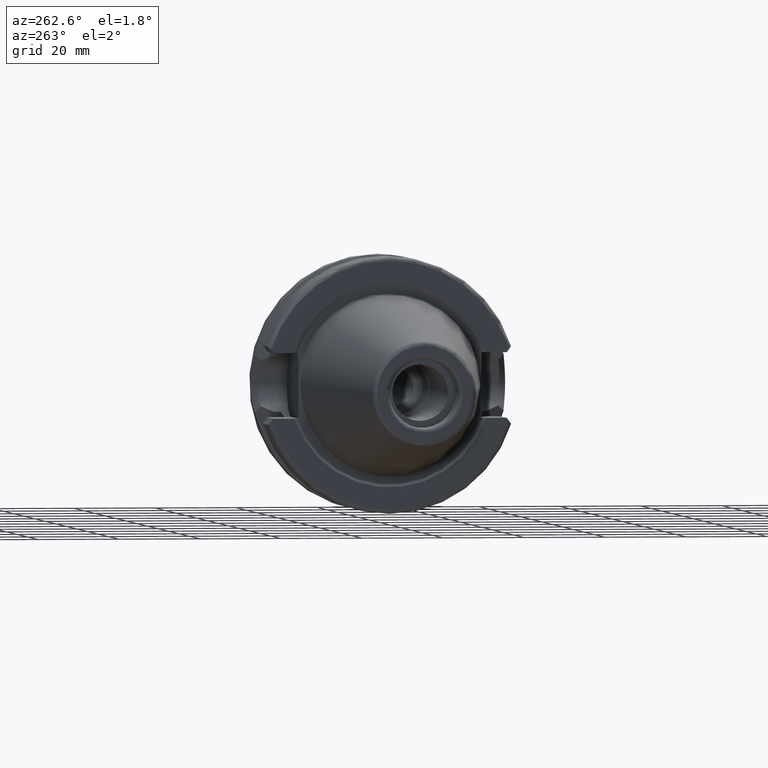
[diagram: clean part render]
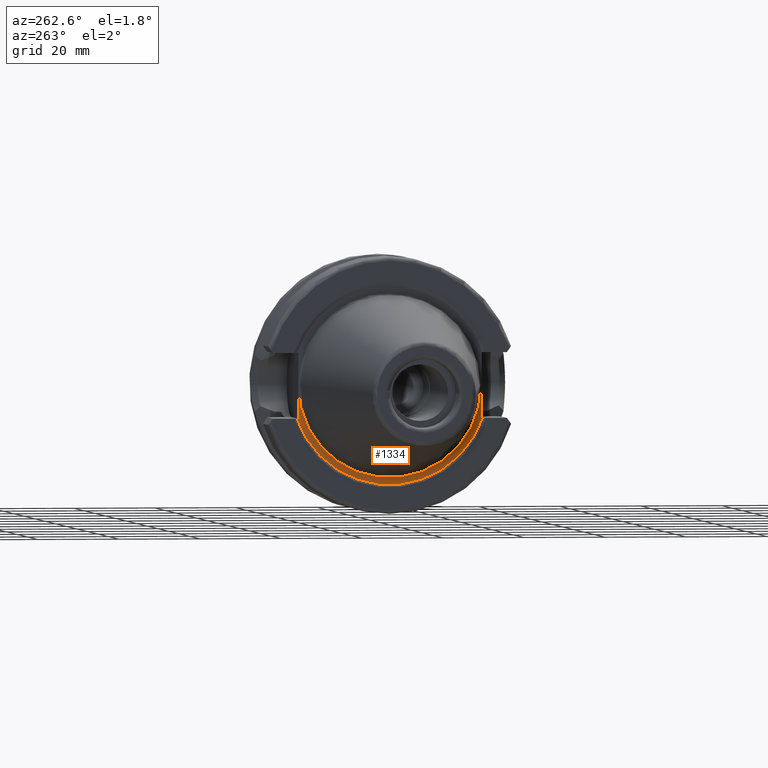
[diagram: same view with one face highlighted and labeled with its STEP entity id]
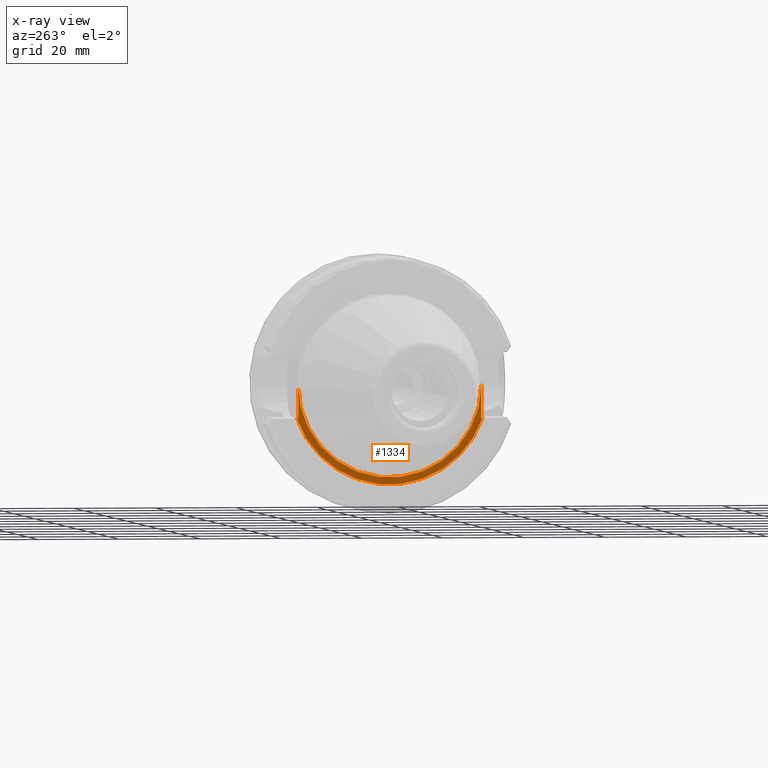
[diagram: x-ray of the same camera — body ghosted, the highlighted face saturated]
A machine part, auxiliary view. The second image highlights one B-rep face of the part: STEP entity #1334.
The next image is the same camera in x-ray: the body ghosted, the highlighted face saturated — about 0% of this face is hidden behind the body in this view.
In plain terms, the highlighted planar face has unit normal (-1, 0, 0).
Its self-contained STEP definition (entity closure, byte-faithful):
#77=PLANE('',#1516);
#186=FACE_OUTER_BOUND('',#273,.T.);
#273=EDGE_LOOP('',(#1184,#1185,#1186,#1187,#1188,#1189));
#322=LINE('',#2435,#392);
#335=LINE('',#2473,#405);
#342=LINE('',#2508,#412);
#350=LINE('',#2568,#420);
#392=VECTOR('',#1807,10.);
#405=VECTOR('',#1832,10.);
#412=VECTOR('',#1845,10.);
#420=VECTOR('',#1895,10.);
#498=CIRCLE('',#1496,24.3071796769724);
#506=CIRCLE('',#1517,22.6);
#600=VERTEX_POINT('',#2430);
#601=VERTEX_POINT('',#2434);
#613=VERTEX_POINT('',#2470);
#614=VERTEX_POINT('',#2472);
#621=VERTEX_POINT('',#2507);
#624=VERTEX_POINT('',#2517);
#766=EDGE_CURVE('',#601,#600,#322,.T.);
#783=EDGE_CURVE('',#614,#613,#335,.T.);
#794=EDGE_CURVE('',#621,#614,#342,.T.);
#801=EDGE_CURVE('',#621,#600,#498,.T.);
#817=EDGE_CURVE('',#624,#601,#350,.T.);
#821=EDGE_CURVE('',#613,#624,#506,.T.);
#1184=ORIENTED_EDGE('',*,*,#783,.T.);
#1185=ORIENTED_EDGE('',*,*,#821,.T.);
#1186=ORIENTED_EDGE('',*,*,#817,.T.);
#1187=ORIENTED_EDGE('',*,*,#766,.T.);
#1188=ORIENTED_EDGE('',*,*,#801,.F.);
#1189=ORIENTED_EDGE('',*,*,#794,.T.);
#1334=ADVANCED_FACE('',(#186),#77,.T.);
#1496=AXIS2_PLACEMENT_3D('',#2523,#1858,#1859);
#1516=AXIS2_PLACEMENT_3D('',#2581,#1905,#1906);
#1517=AXIS2_PLACEMENT_3D('',#2582,#1907,#1908);
#1807=DIRECTION('',(0.,1.,0.));
#1832=DIRECTION('',(0.,0.,1.));
#1845=DIRECTION('',(0.,1.,0.));
#1858=DIRECTION('center_axis',(1.,0.,0.));
#1859=DIRECTION('ref_axis',(0.,0.,-1.));
#1895=DIRECTION('',(0.,0.,-1.));
#1905=DIRECTION('center_axis',(-1.,0.,0.));
#1906=DIRECTION('ref_axis',(0.,0.,1.));
#1907=DIRECTION('center_axis',(1.,0.,0.));
#1908=DIRECTION('ref_axis',(0.,0.,-1.));
#2430=CARTESIAN_POINT('',(1.4,22.9354852542653,-8.05));
#2434=CARTESIAN_POINT('',(1.4,22.6,-8.05));
#2435=CARTESIAN_POINT('',(1.4,23.4535898384862,-8.05));
#2470=CARTESIAN_POINT('',(1.4,-22.6,0.));
#2472=CARTESIAN_POINT('',(1.4,-22.6,-8.05));
#2473=CARTESIAN_POINT('',(1.4,-22.6,2.77555756156289E-16));
#2507=CARTESIAN_POINT('',(1.4,-22.9354852542653,-8.05));
#2508=CARTESIAN_POINT('',(1.4,0.853589838486224,-8.05));
#2517=CARTESIAN_POINT('',(1.4,22.6,0.));
#2523=CARTESIAN_POINT('Origin',(1.4,0.,0.));
#2568=CARTESIAN_POINT('',(1.4,22.6,2.77555756156289E-16));
#2581=CARTESIAN_POINT('Origin',(1.4,24.3071796769724,0.));
#2582=CARTESIAN_POINT('Origin',(1.4,0.,0.));